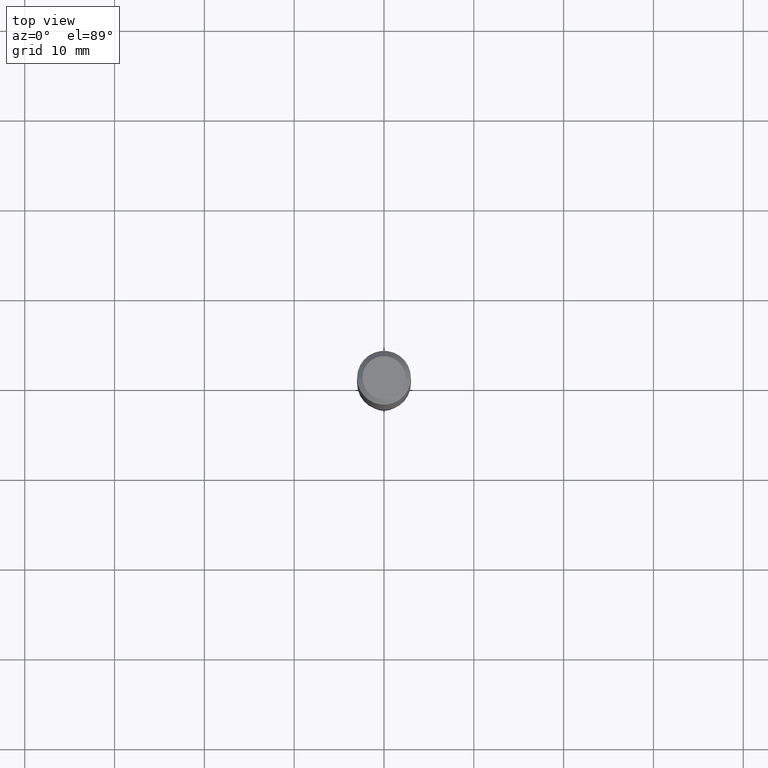
[diagram: clean part render]
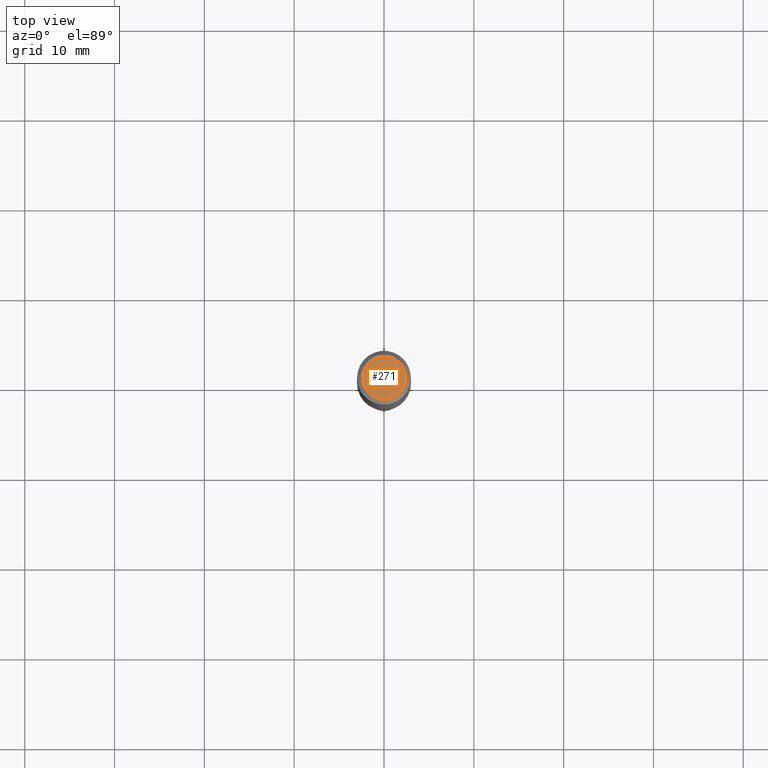
[diagram: same view with one face highlighted and labeled with its STEP entity id]
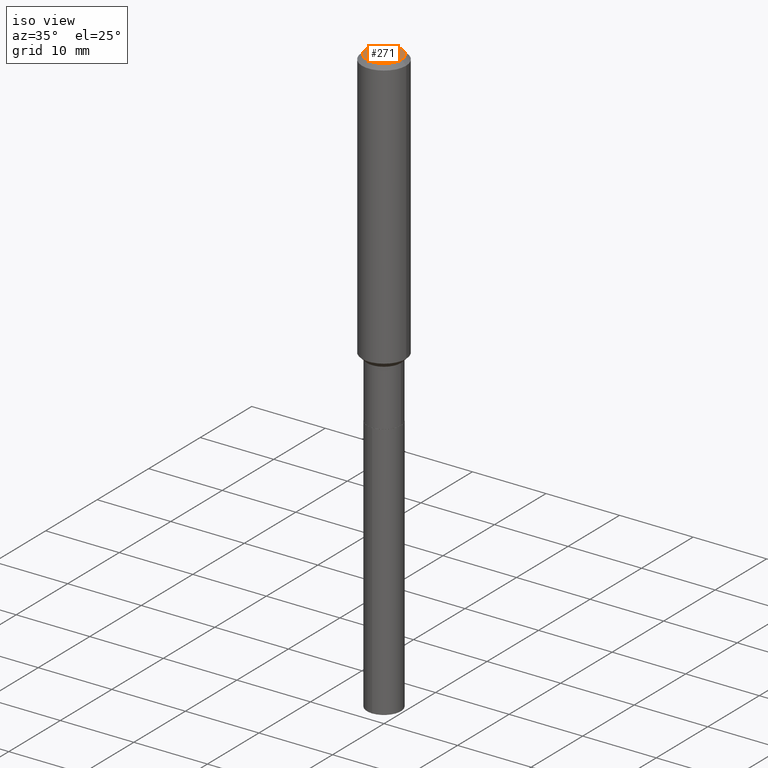
[diagram: same view with one face highlighted and labeled with its STEP entity id]
A machine part, top view. The second image highlights one B-rep face of the part: STEP entity #271.
A second angle (iso view) of the same face is appended — the face is thin or edge-on in the first view.
In plain terms, the highlighted planar face has unit normal (0, -0, -1).
Its self-contained STEP definition (entity closure, byte-faithful):
#5 = CARTESIAN_POINT ( 'NONE',  ( 2.358133508849003952E-46, -3.366789680499277518E-32, -9.642868896486260050E-18 ) ) ;
#28 = AXIS2_PLACEMENT_3D ( 'NONE', #441, #105, #42 ) ;
#42 = DIRECTION ( 'NONE',  ( 1.000000000000000000, -6.982962677686267499E-15, 4.875432709231658792E-29 ) ) ;
#51 = EDGE_LOOP ( 'NONE', ( #136, #281 ) ) ;
#75 = CARTESIAN_POINT ( 'NONE',  ( 4.716267017698007905E-46, -6.733579360998555036E-32, -1.928573779297252010E-17 ) ) ;
#77 = DIRECTION ( 'NONE',  ( 1.000000000000000000, -6.982962677686267499E-15, 4.875432709231658792E-29 ) ) ;
#103 = AXIS2_PLACEMENT_3D ( 'NONE', #75, #119, #77 ) ;
#105 = DIRECTION ( 'NONE',  ( -2.445468806185136597E-29, 3.491481338843145583E-15, 1.000000000000000000 ) ) ;
#119 = DIRECTION ( 'NONE',  ( -2.445468806185136597E-29, 3.491481338843145583E-15, 1.000000000000000000 ) ) ;
#136 = ORIENTED_EDGE ( 'NONE', *, *, #142, .T. ) ;
#142 = EDGE_CURVE ( 'NONE', #165, #287, #337, .T. ) ;
#165 = VERTEX_POINT ( 'NONE', #193 ) ;
#171 = AXIS2_PLACEMENT_3D ( 'NONE', #5, #273, #421 ) ;
#192 = EDGE_CURVE ( 'NONE', #287, #165, #369, .T. ) ;
#193 = CARTESIAN_POINT ( 'NONE',  ( -0.09447999999999998066, 7.009847083995354710E-16, -1.928573779297727792E-17 ) ) ;
#196 = FACE_OUTER_BOUND ( 'NONE', #51, .T. ) ;
#271 = ADVANCED_FACE ( 'NONE', ( #196 ), #344, .F. ) ;
#273 = DIRECTION ( 'NONE',  ( 2.438088387897960049E-29, -3.491481338843145188E-15, -1.000000000000000000 ) ) ;
#276 = CARTESIAN_POINT ( 'NONE',  ( 0.09447999999999998066, -7.704367267948738690E-16, -1.928573779296752193E-17 ) ) ;
#281 = ORIENTED_EDGE ( 'NONE', *, *, #192, .T. ) ;
#287 = VERTEX_POINT ( 'NONE', #276 ) ;
#337 = CIRCLE ( 'NONE', #28, 0.09447999999999998066 ) ;
#344 = PLANE ( 'NONE',  #171 ) ;
#369 = CIRCLE ( 'NONE', #103, 0.09447999999999998066 ) ;
#421 = DIRECTION ( 'NONE',  ( -1.000000000000000000, 6.982962677686265922E-15, -4.876176775795935793E-29 ) ) ;
#441 = CARTESIAN_POINT ( 'NONE',  ( 4.716267017698007905E-46, -6.733579360998555036E-32, -1.928573779297252010E-17 ) ) ;